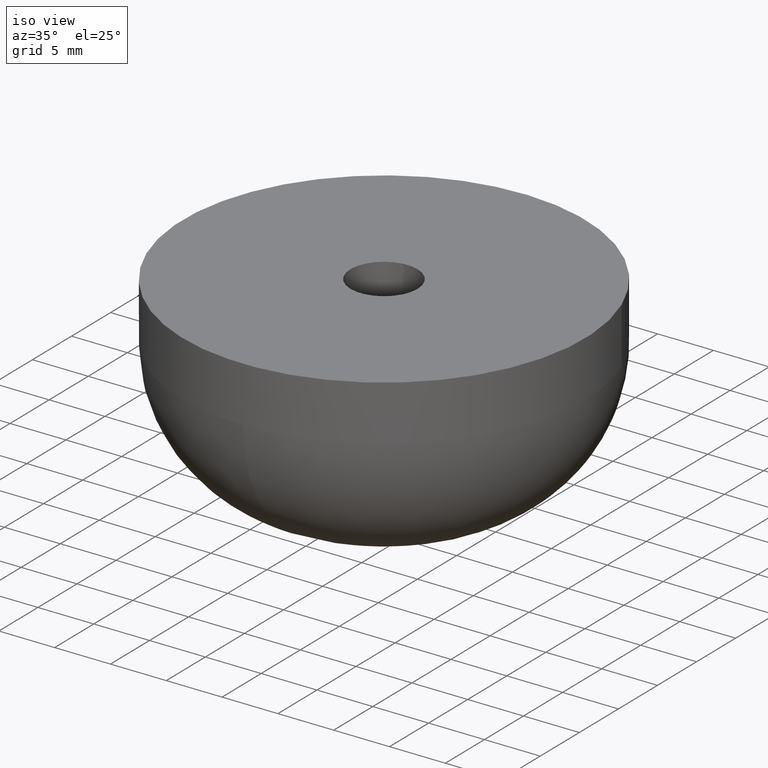
[diagram: clean part render]
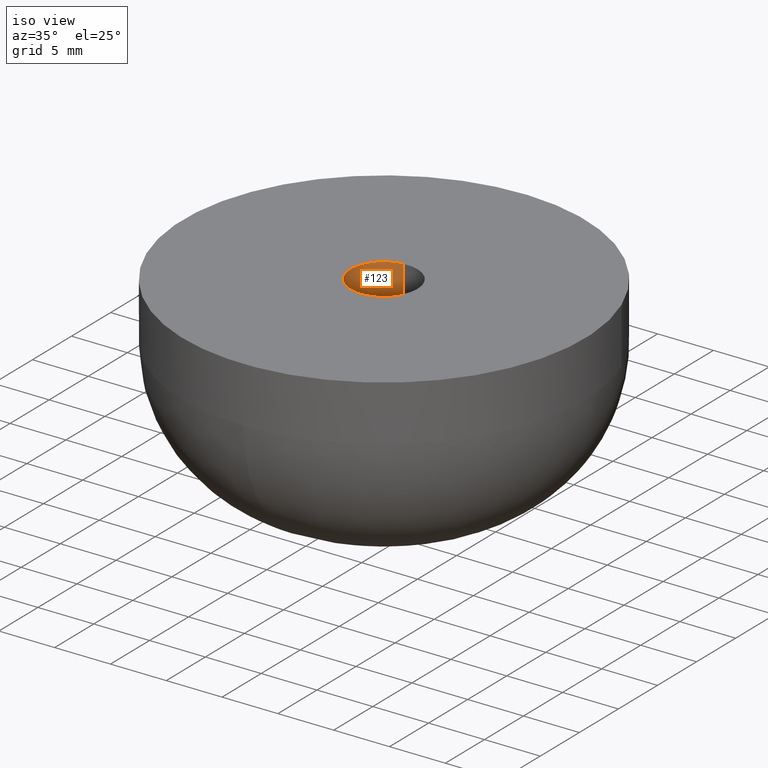
[diagram: same view with one face highlighted and labeled with its STEP entity id]
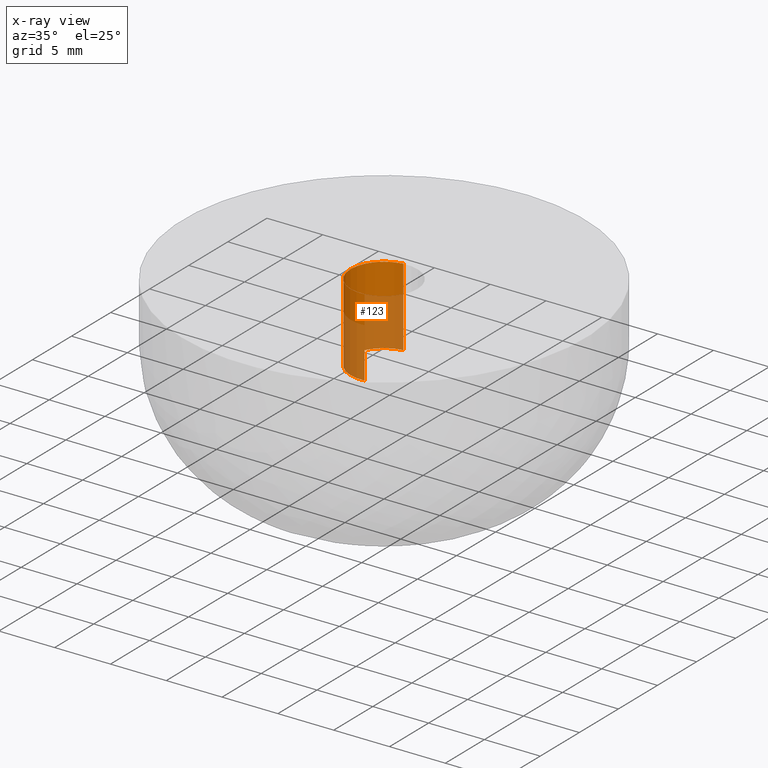
[diagram: x-ray of the same camera — body ghosted, the highlighted face saturated]
A machine part, iso view. The second image highlights one B-rep face of the part: STEP entity #123.
The next image is the same camera in x-ray: the body ghosted, the highlighted face saturated — about 58% of this face is hidden behind the body in this view.
In plain terms, the highlighted cylindrical surface (partial cylindrical patch) has radius 3 mm, axis along (0, 0, 1).
Its self-contained STEP definition (entity closure, byte-faithful):
#123=ADVANCED_FACE('',(#249),#248,.F.);
#248=CYLINDRICAL_SURFACE('',#402,3.00000000000E+000);
#249=FACE_OUTER_BOUND('',#403,.T.);
#399=CARTESIAN_POINT('',(1.13884396696E-013,1.20055448736E-014,1.71750000000E+001));
#400=DIRECTION('',(3.10686412317E-014,3.09669168472E-015,1.00000000000E+000));
#401=DIRECTION('',(1.18034234657E-001,-9.93009526364E-001,-5.92118946468E-016));
#402=AXIS2_PLACEMENT_3D('',#399,#400,#401);
#403=EDGE_LOOP('',(#548,#549,#550,#551,#552,#553));
#548=ORIENTED_EDGE('',*,*,#623,.F.);
#549=ORIENTED_EDGE('',*,*,#625,.F.);
#550=ORIENTED_EDGE('',*,*,#646,.F.);
#551=ORIENTED_EDGE('',*,*,#637,.T.);
#552=ORIENTED_EDGE('',*,*,#639,.T.);
#553=ORIENTED_EDGE('',*,*,#647,.T.);
#623=EDGE_CURVE('',#792,#793,#794,.T.);
#625=EDGE_CURVE('',#800,#792,#807,.T.);
#637=EDGE_CURVE('',#890,#891,#892,.T.);
#639=EDGE_CURVE('',#891,#898,#905,.T.);
#646=EDGE_CURVE('',#890,#800,#953,.T.);
#647=EDGE_CURVE('',#898,#793,#959,.T.);
#792=VERTEX_POINT('',#1145);
#793=VERTEX_POINT('',#1146);
#794=CIRCLE('',#1150,3.00000000000E+000);
#800=VERTEX_POINT('',#1151);
#807=CIRCLE('',#1159,3.00000000000E+000);
#890=VERTEX_POINT('',#1215);
#891=VERTEX_POINT('',#1216);
#892=CIRCLE('',#1220,3.00000000000E+000);
#898=VERTEX_POINT('',#1221);
#905=CIRCLE('',#1229,3.00000000000E+000);
#953=(BOUNDED_CURVE() B_SPLINE_CURVE(1,(#1260,#1261),.UNSPECIFIED.,.F.,.F.) B_SPLINE_CURVE_WITH_KNOTS((2,2),(8.33333320912E-002,9.16666664070E-001),.UNSPECIFIED.) CURVE() GEOMETRIC_REPRESENTATION_ITEM() RATIONAL_B_SPLINE_CURVE((1.00000000000E+000,1.00000000000E+000)) REPRESENTATION_ITEM('') );
#959=(BOUNDED_CURVE() B_SPLINE_CURVE(1,(#1262,#1263),.UNSPECIFIED.,.F.,.F.) B_SPLINE_CURVE_WITH_KNOTS((2,2),(8.33333333333E-002,9.16666666667E-001),.UNSPECIFIED.) CURVE() GEOMETRIC_REPRESENTATION_ITEM() RATIONAL_B_SPLINE_CURVE((7.50000000000E-001,7.50000000000E-001)) REPRESENTATION_ITEM('') );
#1145=CARTESIAN_POINT('',(-3.00000000000E+000,-7.77156117238E-016,1.70000000000E+001));
#1146=CARTESIAN_POINT('',(-3.54617583606E-001,2.97896733272E+000,1.70000000000E+001));
#1147=CARTESIAN_POINT('',(4.44089209850E-016,2.22044604925E-016,1.70000000000E+001));
#1148=DIRECTION('',(1.06736730200E-014,-1.11642127335E-015,-1.00000000000E+000));
#1149=DIRECTION('',(-1.00000000000E+000,2.77555756156E-017,-1.06736730200E-014));
#1150=AXIS2_PLACEMENT_3D('',#1147,#1148,#1149);
#1151=CARTESIAN_POINT('',(3.54101614557E-001,-2.97902870858E+000,1.70000000000E+001));
#1156=CARTESIAN_POINT('',(4.44089209850E-016,2.22044604925E-016,1.70000000000E+001));
#1157=DIRECTION('',(1.06736730200E-014,-1.11642127335E-015,-1.00000000000E+000));
#1158=DIRECTION('',(-1.00000000000E+000,2.77555756156E-017,-1.06736730200E-014));
#1159=AXIS2_PLACEMENT_3D('',#1156,#1157,#1158);
#1215=CARTESIAN_POINT('',(3.54101614557E-001,-2.97902870858E+000,1.00000000000E+001));
#1216=CARTESIAN_POINT('',(-3.00000000000E+000,-7.77156117238E-016,1.00000000000E+001));
#1217=CARTESIAN_POINT('',(4.44089209850E-016,2.22044604925E-016,1.00000000000E+001));
#1218=DIRECTION('',(-3.80998186808E-015,-1.64544865225E-015,-1.00000000000E+000));
#1219=DIRECTION('',(-1.00000000000E+000,2.77555756156E-017,3.80998186808E-015));
#1220=AXIS2_PLACEMENT_3D('',#1217,#1218,#1219);
#1221=CARTESIAN_POINT('',(-3.54617583606E-001,2.97896733272E+000,1.00000000000E+001));
#1226=CARTESIAN_POINT('',(4.44089209850E-016,2.22044604925E-016,1.00000000000E+001));
#1227=DIRECTION('',(-3.80998186808E-015,-1.64544865225E-015,-1.00000000000E+000));
#1228=DIRECTION('',(-1.00000000000E+000,2.77555756156E-017,3.80998186808E-015));
#1229=AXIS2_PLACEMENT_3D('',#1226,#1227,#1228);
#1260=CARTESIAN_POINT('',(3.54102703970E-001,-2.97902857909E+000,9.99999998957E+000));
#1261=CARTESIAN_POINT('',(3.54102703970E-001,-2.97902857909E+000,1.69999999782E+001));
#1262=CARTESIAN_POINT('',(-3.54102703970E-001,2.97902857909E+000,1.00000000000E+001));
#1263=CARTESIAN_POINT('',(-3.54102703970E-001,2.97902857909E+000,1.70000000000E+001));